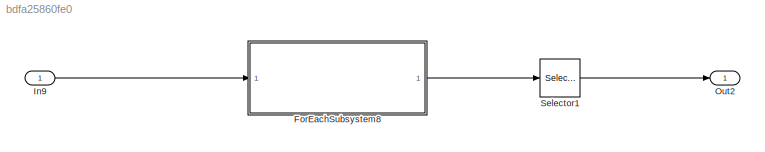
MODEL slx_bdfa25860fe0
KIND model
CONFIG AbsTol = auto
CONFIG EnableMultiTasking = on
CONFIG FixedStep = 0.200000
CONFIG MaxStep = auto
CONFIG MinStep = auto
CONFIG RelTol = 1e-3
CONFIG SampleTimeConstraint = Unconstrained
CONFIG Solver = FixedStepDiscrete
CONFIG SolverName = FixedStepDiscrete
CONFIG StartTime = 0.0
CONFIG StopTime = 10.0
WORKSPACE source: MAT-file member
WORKSPACE already_pp = 0
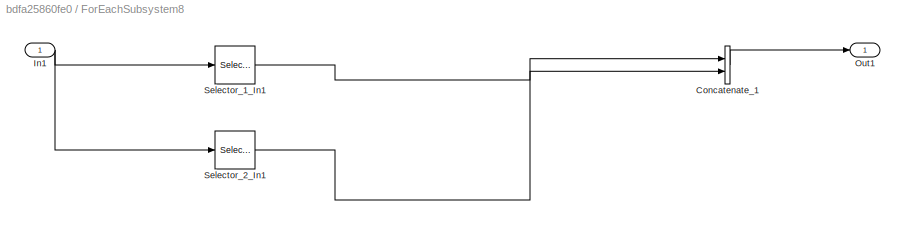
BLOCK [SubSystem] ForEachSubsystem8
  Ports = [1, 1]
  RequestExecContextInheritance = off
  TreatAsAtomicUnit = on
  Variant = off
BLOCK [Concatenate] ForEachSubsystem8/Concatenate_1
  Mode = Multidimensional array
  Ports = [2, 1]
BLOCK [Inport] ForEachSubsystem8/In1
  IconDisplay = Port number
  OutDataTypeStr = double
  PortDimensions = [3 2 4]
BLOCK [Outport] ForEachSubsystem8/Out1
  IconDisplay = Port number
BLOCK [Selector] ForEachSubsystem8/Selector_1_In1
  IndexOptions = Select all,Select all,Index vector (dialog)
  Indices = ,,[1 2]
  NumberOfDimensions = 3
  OutputSizes = 1
  Ports = [1, 1]
BLOCK [Selector] ForEachSubsystem8/Selector_2_In1
  IndexOptions = Select all,Select all,Index vector (dialog)
  Indices = ,,[3 4]
  NumberOfDimensions = 3
  OutputSizes = 1
  Ports = [1, 1]
BLOCK [Inport] In9
  IconDisplay = Port number
  OutDataTypeStr = double
  PortDimensions = [3 2 4]
BLOCK [Outport] Out2
  IconDisplay = Port number
BLOCK [Selector] Selector1
  IndexOptions = Select all,Select all,Index vector (dialog)
  Indices = [1 3],1,1
  InputPortWidth = 3
  NumberOfDimensions = 3
  OutputSizes = 1,1,1
  Ports = [1, 1]
LINE ForEachSubsystem8/Concatenate_1:1 -> ForEachSubsystem8/Out1:1
NET ForEachSubsystem8/In1:1 -> ForEachSubsystem8/Selector_1_In1:1, ForEachSubsystem8/Selector_2_In1:1
LINE ForEachSubsystem8/Selector_1_In1:1 -> ForEachSubsystem8/Concatenate_1:1
LINE ForEachSubsystem8/Selector_2_In1:1 -> ForEachSubsystem8/Concatenate_1:2
LINE ForEachSubsystem8:1 -> Selector1:1
LINE In9:1 -> ForEachSubsystem8:1
LINE Selector1:1 -> Out2:1
note: NET lines group one-source signal fan-out (src -> all destinations, sorted); 1:1 wires keep LINE
